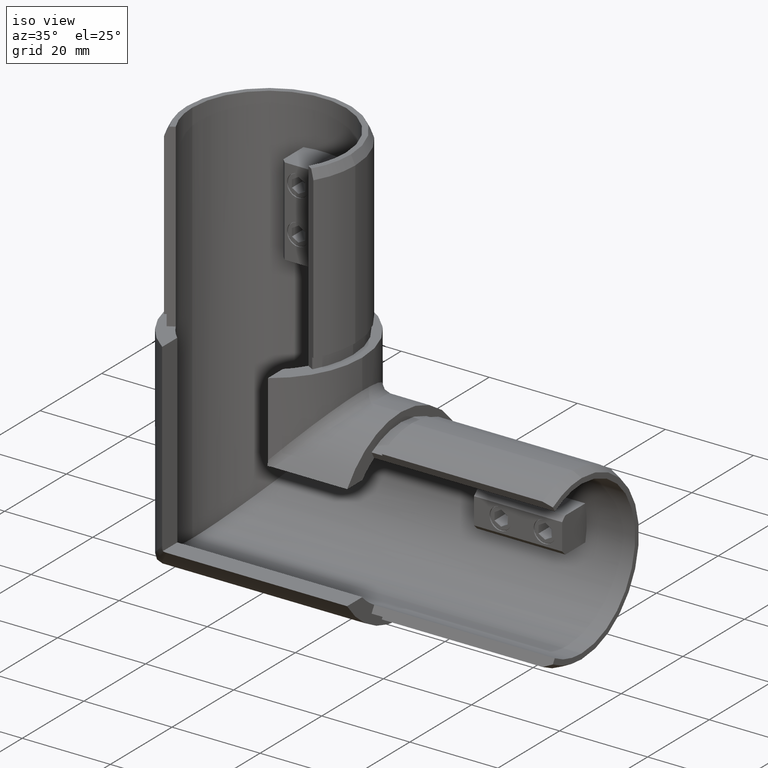
[diagram: clean part render]
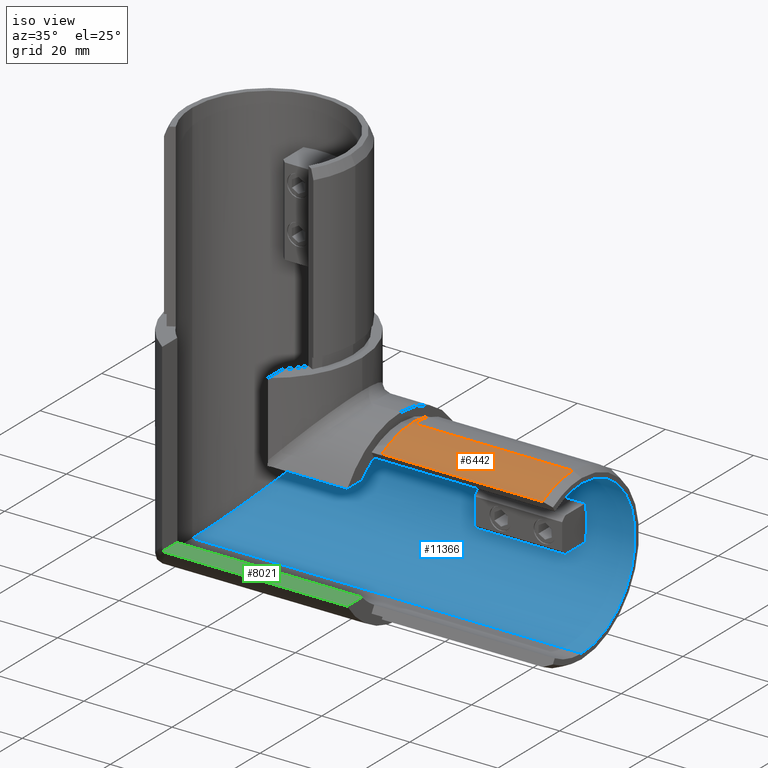
[diagram: same view with three faces highlighted in distinct colors, each labeled with its STEP entity id]
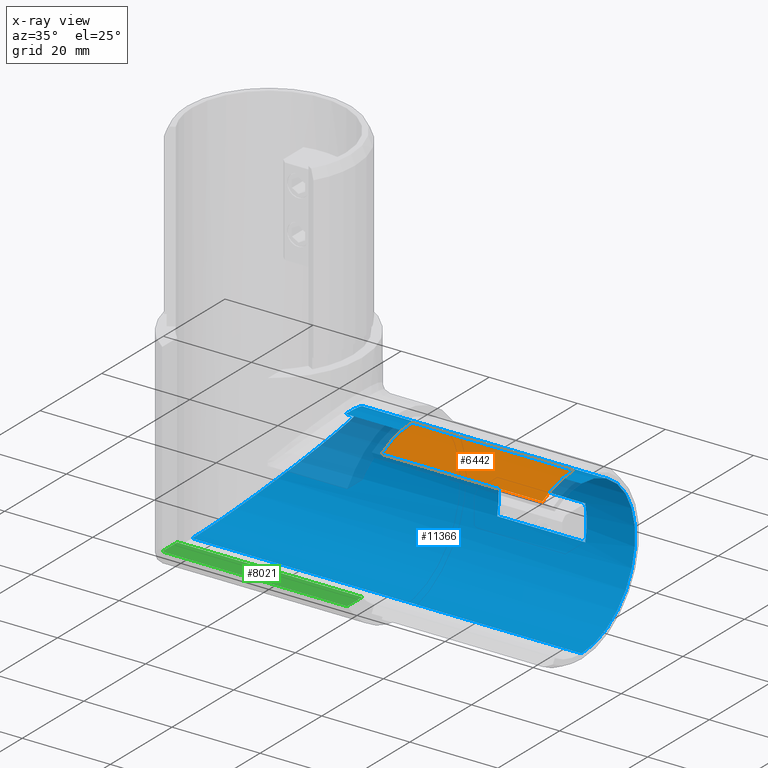
[diagram: x-ray of the same camera — body ghosted, the three highlighted faces saturated]
A machine part, iso view with three faces highlighted in distinct colors.
The next image is the same camera in x-ray (body ghosted, the three faces saturated) — at least one of them is partly hidden behind the body in this view.
Their STEP definitions:

[orange] entity #6442 — the highlighted cylindrical surface (partial cylindrical patch) has radius 19.6 mm, axis along (-1, 0, 0).
#84 = EDGE_LOOP ( 'NONE', ( #10542, #800, #1471, #18611 ) ) ;
#228 = LINE ( 'NONE', #9707, #11239 ) ;
#329 = DIRECTION ( 'NONE',  ( 7.080503983578803800E-016, 0.0000000000000000000, 1.000000000000000000 ) ) ;
#408 = DIRECTION ( 'NONE',  ( -1.000000000000000000, -0.0000000000000000000, 4.440892098500625200E-016 ) ) ;
#616 = CARTESIAN_POINT ( 'NONE',  ( 71.00000000000001400, -9.800000378167199600, 16.97409769584003000 ) ) ;
#800 = ORIENTED_EDGE ( 'NONE', *, *, #19136, .T. ) ;
#818 = CIRCLE ( 'NONE', #11061, 19.60000000000000100 ) ;
#1471 = ORIENTED_EDGE ( 'NONE', *, *, #16663, .F. ) ;
#1719 = EDGE_CURVE ( 'NONE', #12855, #16766, #818, .T. ) ;
#2042 = CARTESIAN_POINT ( 'NONE',  ( 68.99999999999998600, 0.0000000000000000000, 19.59999999999997300 ) ) ;
#2111 = VERTEX_POINT ( 'NONE', #2462 ) ;
#2462 = CARTESIAN_POINT ( 'NONE',  ( 32.50000000000000700, -9.800000378167199600, 16.97409769584004700 ) ) ;
#5204 = AXIS2_PLACEMENT_3D ( 'NONE', #20217, #10806, #13965 ) ;
#5714 = DIRECTION ( 'NONE',  ( -7.080503983578803800E-016, 2.664535259100375700E-015, -1.000000000000000000 ) ) ;
#6359 = DIRECTION ( 'NONE',  ( -1.000000000000000000, -0.0000000000000000000, 4.440892098500625200E-016 ) ) ;
#6442 = ADVANCED_FACE ( 'NONE', ( #14422 ), #19073, .T. ) ;
#6633 = DIRECTION ( 'NONE',  ( -1.000000000000000000, -0.0000000000000000000, 4.440892098500625200E-016 ) ) ;
#9660 = CIRCLE ( 'NONE', #5204, 19.60000000000000100 ) ;
#9707 = CARTESIAN_POINT ( 'NONE',  ( 71.00000000000002800, 0.0000000000000000000, 19.59999999999997300 ) ) ;
#10024 = VERTEX_POINT ( 'NONE', #15196 ) ;
#10542 = ORIENTED_EDGE ( 'NONE', *, *, #1719, .T. ) ;
#10806 = DIRECTION ( 'NONE',  ( -1.000000000000000000, -0.0000000000000000000, 4.440892098500625200E-016 ) ) ;
#11061 = AXIS2_PLACEMENT_3D ( 'NONE', #15104, #18251, #5714 ) ;
#11143 = CARTESIAN_POINT ( 'NONE',  ( 71.00000000000001400, 0.0000000000000000000, -3.153033389935443900E-014 ) ) ;
#11239 = VECTOR ( 'NONE', #6633, 1000.000000000000000 ) ;
#12742 = LINE ( 'NONE', #616, #14225 ) ;
#12855 = VERTEX_POINT ( 'NONE', #15427 ) ;
#13965 = DIRECTION ( 'NONE',  ( 3.540251991789401900E-016, 0.0000000000000000000, 1.000000000000000000 ) ) ;
#14225 = VECTOR ( 'NONE', #408, 1000.000000000000000 ) ;
#14422 = FACE_OUTER_BOUND ( 'NONE', #84, .T. ) ;
#14552 = EDGE_CURVE ( 'NONE', #12855, #2111, #12742, .T. ) ;
#15104 = CARTESIAN_POINT ( 'NONE',  ( 68.99999999999997200, 0.0000000000000000000, -3.064215547965429500E-014 ) ) ;
#15196 = CARTESIAN_POINT ( 'NONE',  ( 32.50000000000000700, 0.0000000000000000000, 19.59999999999998700 ) ) ;
#15427 = CARTESIAN_POINT ( 'NONE',  ( 69.00000000000000000, -9.800000378167196000, 16.97409769584003300 ) ) ;
#16663 = EDGE_CURVE ( 'NONE', #2111, #10024, #9660, .T. ) ;
#16766 = VERTEX_POINT ( 'NONE', #2042 ) ;
#18251 = DIRECTION ( 'NONE',  ( -1.000000000000000000, -0.0000000000000000000, 4.440892098500626200E-016 ) ) ;
#18611 = ORIENTED_EDGE ( 'NONE', *, *, #14552, .F. ) ;
#18727 = AXIS2_PLACEMENT_3D ( 'NONE', #11143, #6359, #329 ) ;
#19073 = CYLINDRICAL_SURFACE ( 'NONE', #18727, 19.60000000000000100 ) ;
#19136 = EDGE_CURVE ( 'NONE', #16766, #10024, #228, .T. ) ;
#20217 = CARTESIAN_POINT ( 'NONE',  ( 32.50000000000000000, 0.0000000000000000000, -1.443289932012703200E-014 ) ) ;

[blue] entity #11366 — the highlighted cylindrical surface (partial cylindrical patch) has radius 17.4 mm, axis along (1, 0, 0).
#112 = DIRECTION ( 'NONE',  ( 1.000000000000000000, 0.0000000000000000000, 0.0000000000000000000 ) ) ;
#128 = CARTESIAN_POINT ( 'NONE',  ( 60.00000000000000700, 0.0000000000000000000, 0.0000000000000000000 ) ) ;
#242 = VECTOR ( 'NONE', #17468, 1000.000000000000000 ) ;
#930 = DIRECTION ( 'NONE',  ( -1.000000000000000000, -0.0000000000000000000, -0.0000000000000000000 ) ) ;
#1106 = CARTESIAN_POINT ( 'NONE',  ( -17.40000000000000200, 0.0000000000000000000, -17.40000000000000200 ) ) ;
#1233 = LINE ( 'NONE', #12749, #242 ) ;
#1379 = AXIS2_PLACEMENT_3D ( 'NONE', #128, #4703, #8122 ) ;
#1535 = CARTESIAN_POINT ( 'NONE',  ( 60.00000000000000000, 16.93398948859954300, -4.000000000000029300 ) ) ;
#1789 = VECTOR ( 'NONE', #15429, 1000.000000000000000 ) ;
#1832 = EDGE_CURVE ( 'NONE', #2514, #11568, #6943, .T. ) ;
#1868 = VERTEX_POINT ( 'NONE', #7497 ) ;
#2333 = CARTESIAN_POINT ( 'NONE',  ( 40.00000000000000000, 16.93398948859954700, -4.000000000000020400 ) ) ;
#2344 = ORIENTED_EDGE ( 'NONE', *, *, #13655, .F. ) ;
#2514 = VERTEX_POINT ( 'NONE', #9193 ) ;
#2925 = CARTESIAN_POINT ( 'NONE',  ( 0.0000000000000000000, 0.0000000000000000000, -17.40000000000000200 ) ) ;
#3169 = CARTESIAN_POINT ( 'NONE',  ( 71.00000000000001400, 0.0000000000000000000, -3.153033389935443900E-014 ) ) ;
#3336 = CARTESIAN_POINT ( 'NONE',  ( 0.0000000000000000000, 0.0000000000000000000, 0.0000000000000000000 ) ) ;
#3616 = DIRECTION ( 'NONE',  ( -1.000000000000000000, 0.0000000000000000000, 2.220446049250312600E-016 ) ) ;
#3754 = FACE_BOUND ( 'NONE', #11548, .T. ) ;
#4288 = CARTESIAN_POINT ( 'NONE',  ( 40.00000000000000000, 16.93398948859955800, 3.999999999999980000 ) ) ;
#4447 = LINE ( 'NONE', #17788, #19148 ) ;
#4524 = EDGE_CURVE ( 'NONE', #14727, #15971, #4447, .T. ) ;
#4606 = VERTEX_POINT ( 'NONE', #11826 ) ;
#4703 = DIRECTION ( 'NONE',  ( 1.000000000000000000, -0.0000000000000000000, -1.089406342913434900E-015 ) ) ;
#4841 = EDGE_CURVE ( 'NONE', #8232, #2514, #19032, .T. ) ;
#5647 = AXIS2_PLACEMENT_3D ( 'NONE', #3336, #112, #12713 ) ;
#6943 = LINE ( 'NONE', #2925, #1789 ) ;
#7189 = CARTESIAN_POINT ( 'NONE',  ( -17.39999999999999900, 34.80000000000000400, -17.39999999999999900 ) ) ;
#7430 = AXIS2_PLACEMENT_3D ( 'NONE', #11134, #3616, #8248 ) ;
#7497 = CARTESIAN_POINT ( 'NONE',  ( 60.00000000000001400, 16.93398948862068200, 3.999999999999970700 ) ) ;
#7724 = ORIENTED_EDGE ( 'NONE', *, *, #10332, .F. ) ;
#7794 = ORIENTED_EDGE ( 'NONE', *, *, #1832, .T. ) ;
#7939 = DIRECTION ( 'NONE',  ( 1.000000000000000000, 0.0000000000000000000, -4.440892098500625200E-016 ) ) ;
#8122 = DIRECTION ( 'NONE',  ( 1.196361017915039200E-015, 3.552713678800500900E-015, 1.000000000000000000 ) ) ;
#8232 = VERTEX_POINT ( 'NONE', #18161 ) ;
#8248 = DIRECTION ( 'NONE',  ( -3.987870059716797300E-016, -4.440892098500626200E-015, -1.000000000000000000 ) ) ;
#8317 = CIRCLE ( 'NONE', #7430, 17.40000000000000200 ) ;
#8631 = CYLINDRICAL_SURFACE ( 'NONE', #5647, 17.40000000000000200 ) ;
#8844 = EDGE_LOOP ( 'NONE', ( #13168, #12157, #7794, #17256 ) ) ;
#9193 = CARTESIAN_POINT ( 'NONE',  ( -17.40000000000000200, 0.0000000000000000000, -17.40000000000000200 ) ) ;
#10332 = EDGE_CURVE ( 'NONE', #1868, #20110, #14567, .T. ) ;
#11134 = CARTESIAN_POINT ( 'NONE',  ( 40.00000000000000000, 0.0000000000000000000, 0.0000000000000000000 ) ) ;
#11366 = ADVANCED_FACE ( 'NONE', ( #14290, #3754 ), #8631, .F. ) ;
#11548 = EDGE_LOOP ( 'NONE', ( #2344, #19497, #19118, #7724 ) ) ;
#11568 = VERTEX_POINT ( 'NONE', #13874 ) ;
#11826 = CARTESIAN_POINT ( 'NONE',  ( 71.00000000000002800, 2.130885430516392900E-015, 17.39999999999997400 ) ) ;
#12157 = ORIENTED_EDGE ( 'NONE', *, *, #4841, .T. ) ;
#12353 = VECTOR ( 'NONE', #930, 1000.000000000000000 ) ;
#12713 = DIRECTION ( 'NONE',  ( 0.0000000000000000000, 0.0000000000000000000, -1.000000000000000000 ) ) ;
#12749 = CARTESIAN_POINT ( 'NONE',  ( 0.0000000000000000000, 2.130885430516394500E-015, 17.40000000000000200 ) ) ;
#13168 = ORIENTED_EDGE ( 'NONE', *, *, #14965, .F. ) ;
#13304 = CIRCLE ( 'NONE', #15430, 17.40000000000000600 ) ;
#13643 = CARTESIAN_POINT ( 'NONE',  ( 17.40000000000000200, 2.130885430516394500E-015, 17.40000000000000200 ) ) ;
#13655 = EDGE_CURVE ( 'NONE', #15971, #1868, #19401, .T. ) ;
#13874 = CARTESIAN_POINT ( 'NONE',  ( 71.00000000000000000, 0.0000000000000000000, -17.40000000000003800 ) ) ;
#14290 = FACE_OUTER_BOUND ( 'NONE', #8844, .T. ) ;
#14567 = LINE ( 'NONE', #16530, #12353 ) ;
#14727 = VERTEX_POINT ( 'NONE', #2333 ) ;
#14965 = EDGE_CURVE ( 'NONE', #8232, #4606, #1233, .T. ) ;
#15429 = DIRECTION ( 'NONE',  ( 1.000000000000000000, 0.0000000000000000000, 0.0000000000000000000 ) ) ;
#15430 = AXIS2_PLACEMENT_3D ( 'NONE', #3169, #7939, #18995 ) ;
#15971 = VERTEX_POINT ( 'NONE', #1535 ) ;
#16342 = DIRECTION ( 'NONE',  ( 1.000000000000000000, 0.0000000000000000000, 0.0000000000000000000 ) ) ;
#16504 = CARTESIAN_POINT ( 'NONE',  ( 17.40000000000000200, 34.80000000000000400, 17.40000000000000200 ) ) ;
#16530 = CARTESIAN_POINT ( 'NONE',  ( 1.776356839400248900E-015, 16.93398948859955100, 3.999999999999997300 ) ) ;
#17256 = ORIENTED_EDGE ( 'NONE', *, *, #18644, .T. ) ;
#17468 = DIRECTION ( 'NONE',  ( 1.000000000000000000, 0.0000000000000000000, 0.0000000000000000000 ) ) ;
#17788 = CARTESIAN_POINT ( 'NONE',  ( -1.776356839400251300E-015, 16.93398948859954700, -4.000000000000002700 ) ) ;
#18161 = CARTESIAN_POINT ( 'NONE',  ( 17.40000000000000200, 2.130885430516394500E-015, 17.40000000000000200 ) ) ;
#18644 = EDGE_CURVE ( 'NONE', #11568, #4606, #13304, .T. ) ;
#18995 = DIRECTION ( 'NONE',  ( 0.0000000000000000000, 0.0000000000000000000, 1.000000000000000000 ) ) ;
#19032 =( BOUNDED_CURVE ( )  B_SPLINE_CURVE ( 3, ( #13643, #16504, #7189, #1106 ),
 .UNSPECIFIED., .F., .T. ) 
 B_SPLINE_CURVE_WITH_KNOTS ( ( 4, 4 ),
 ( 0.0000000000000000000, 3.141592653589793100 ),
 .UNSPECIFIED. ) 
 CURVE ( )  GEOMETRIC_REPRESENTATION_ITEM ( )  RATIONAL_B_SPLINE_CURVE ( ( 1.000000000000000000, 0.3333333333333333700, 0.3333333333333333700, 1.000000000000000000 ) ) 
 REPRESENTATION_ITEM ( '' )  );
#19118 = ORIENTED_EDGE ( 'NONE', *, *, #19888, .F. ) ;
#19148 = VECTOR ( 'NONE', #16342, 1000.000000000000000 ) ;
#19401 = CIRCLE ( 'NONE', #1379, 17.40000000000000200 ) ;
#19497 = ORIENTED_EDGE ( 'NONE', *, *, #4524, .F. ) ;
#19888 = EDGE_CURVE ( 'NONE', #20110, #14727, #8317, .T. ) ;
#20110 = VERTEX_POINT ( 'NONE', #4288 ) ;

[green] entity #8021 — the highlighted planar face has unit normal (0, 0, 1).
#43 = CARTESIAN_POINT ( 'NONE',  ( -12.00000000000000000, -12.60000000000000300, -11.99999999999998900 ) ) ;
#1494 = DIRECTION ( 'NONE',  ( 0.0000000000000000000, -1.000000000000000000, 0.0000000000000000000 ) ) ;
#1794 = CARTESIAN_POINT ( 'NONE',  ( -11.99999999999999800, -12.60000000000000300, -11.99999999999998900 ) ) ;
#2025 = CARTESIAN_POINT ( 'NONE',  ( -12.00000000000000000, -17.26227441778491600, -11.99999999999998900 ) ) ;
#2596 = VERTEX_POINT ( 'NONE', #18520 ) ;
#2632 = EDGE_LOOP ( 'NONE', ( #12683, #2951, #12918, #2697, #9379 ) ) ;
#2642 = DIRECTION ( 'NONE',  ( 1.000000000000000000, 0.0000000000000000000, 0.0000000000000000000 ) ) ;
#2697 = ORIENTED_EDGE ( 'NONE', *, *, #8073, .T. ) ;
#2742 = VERTEX_POINT ( 'NONE', #1794 ) ;
#2951 = ORIENTED_EDGE ( 'NONE', *, *, #11933, .T. ) ;
#3614 = VECTOR ( 'NONE', #9044, 1000.000000000000000 ) ;
#4125 = DIRECTION ( 'NONE',  ( -0.0000000000000000000, 0.0000000000000000000, 1.000000000000000000 ) ) ;
#4327 = CARTESIAN_POINT ( 'NONE',  ( 29.99999999999998200, -17.47684181996278600, -11.99999999999998900 ) ) ;
#4388 = CARTESIAN_POINT ( 'NONE',  ( -10.86792452830188100, -17.47684181996278600, -11.99999999999998900 ) ) ;
#4810 = LINE ( 'NONE', #10087, #13659 ) ;
#5075 = B_SPLINE_CURVE_WITH_KNOTS ( 'NONE', 3,
 ( #2025, #13199, #5434, #14775 ),
 .UNSPECIFIED., .F., .F.,
 ( 4, 4 ),
 ( 0.0000000000000000000, 0.001152230030722111500 ),
 .UNSPECIFIED. ) ;
#5434 = CARTESIAN_POINT ( 'NONE',  ( -11.25883899672412600, -17.47684181996299200, -11.99999999999998900 ) ) ;
#5895 = CARTESIAN_POINT ( 'NONE',  ( 29.99999999999999600, -12.60000000000000300, -11.99999999999998900 ) ) ;
#6597 = EDGE_CURVE ( 'NONE', #2742, #18737, #14903, .T. ) ;
#7159 = LINE ( 'NONE', #13528, #14270 ) ;
#7477 = PLANE ( 'NONE',  #20348 ) ;
#7596 = EDGE_CURVE ( 'NONE', #2742, #2596, #4810, .T. ) ;
#8019 = VERTEX_POINT ( 'NONE', #4327 ) ;
#8021 = ADVANCED_FACE ( 'NONE', ( #11694 ), #7477, .T. ) ;
#8073 = EDGE_CURVE ( 'NONE', #8019, #2596, #15363, .T. ) ;
#9044 = DIRECTION ( 'NONE',  ( 0.0000000000000000000, 1.000000000000000000, -0.0000000000000000000 ) ) ;
#9379 = ORIENTED_EDGE ( 'NONE', *, *, #7596, .F. ) ;
#10087 = CARTESIAN_POINT ( 'NONE',  ( -11.99999999999999800, -12.60000000000000300, -11.99999999999998900 ) ) ;
#11694 = FACE_OUTER_BOUND ( 'NONE', #2632, .T. ) ;
#11735 = DIRECTION ( 'NONE',  ( 1.000000000000000000, 0.0000000000000000000, 0.0000000000000000000 ) ) ;
#11930 = CARTESIAN_POINT ( 'NONE',  ( -12.00000000000000000, -12.60000000000000300, -11.99999999999998900 ) ) ;
#11933 = EDGE_CURVE ( 'NONE', #18737, #16542, #5075, .T. ) ;
#12058 = EDGE_CURVE ( 'NONE', #16542, #8019, #7159, .T. ) ;
#12683 = ORIENTED_EDGE ( 'NONE', *, *, #6597, .T. ) ;
#12689 = CARTESIAN_POINT ( 'NONE',  ( -12.00000000000000000, -17.26227441778491600, -11.99999999999998900 ) ) ;
#12918 = ORIENTED_EDGE ( 'NONE', *, *, #12058, .T. ) ;
#13199 = CARTESIAN_POINT ( 'NONE',  ( -11.63447158598218000, -17.39621335362800600, -11.99999999999998900 ) ) ;
#13528 = CARTESIAN_POINT ( 'NONE',  ( -12.00000000000000000, -17.47684181996278600, -11.99999999999998900 ) ) ;
#13659 = VECTOR ( 'NONE', #11735, 1000.000000000000000 ) ;
#14270 = VECTOR ( 'NONE', #2642, 1000.000000000000000 ) ;
#14775 = CARTESIAN_POINT ( 'NONE',  ( -10.86792452830188100, -17.47684181996278600, -11.99999999999998900 ) ) ;
#14903 = LINE ( 'NONE', #43, #19056 ) ;
#15363 = LINE ( 'NONE', #5895, #3614 ) ;
#16542 = VERTEX_POINT ( 'NONE', #4388 ) ;
#16647 = DIRECTION ( 'NONE',  ( 1.000000000000000000, 0.0000000000000000000, 0.0000000000000000000 ) ) ;
#18520 = CARTESIAN_POINT ( 'NONE',  ( 30.00000000000000000, -12.60000000000000900, -11.99999999999999500 ) ) ;
#18737 = VERTEX_POINT ( 'NONE', #12689 ) ;
#19056 = VECTOR ( 'NONE', #1494, 1000.000000000000000 ) ;
#20348 = AXIS2_PLACEMENT_3D ( 'NONE', #11930, #4125, #16647 ) ;